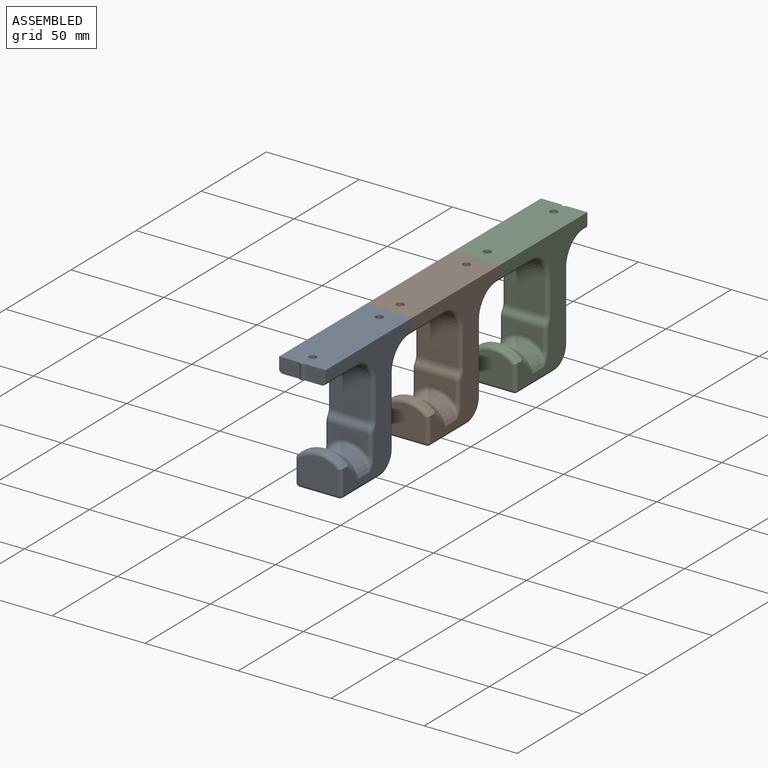
[diagram: assembled view]
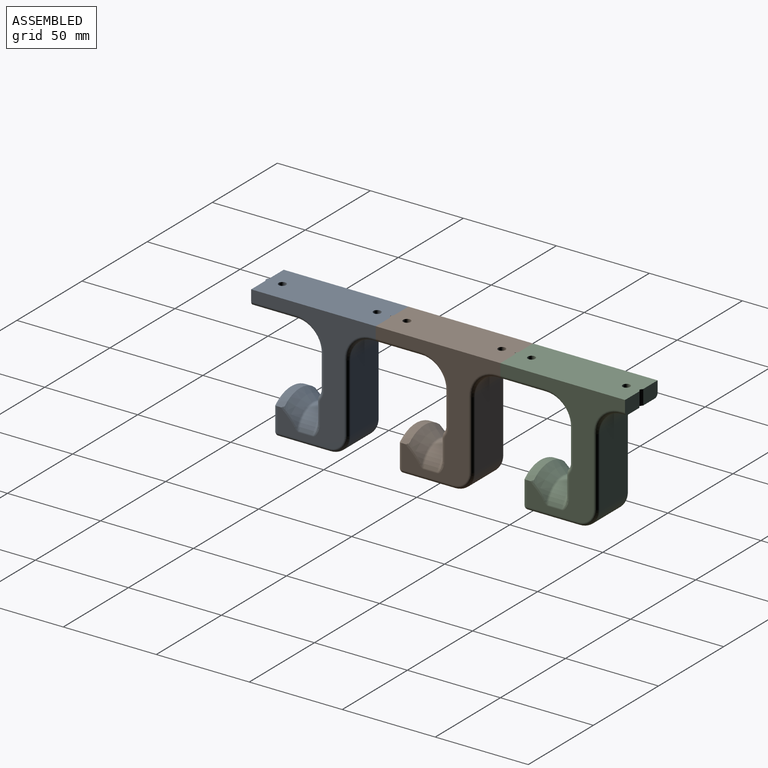
[diagram: assembled view, second angle]
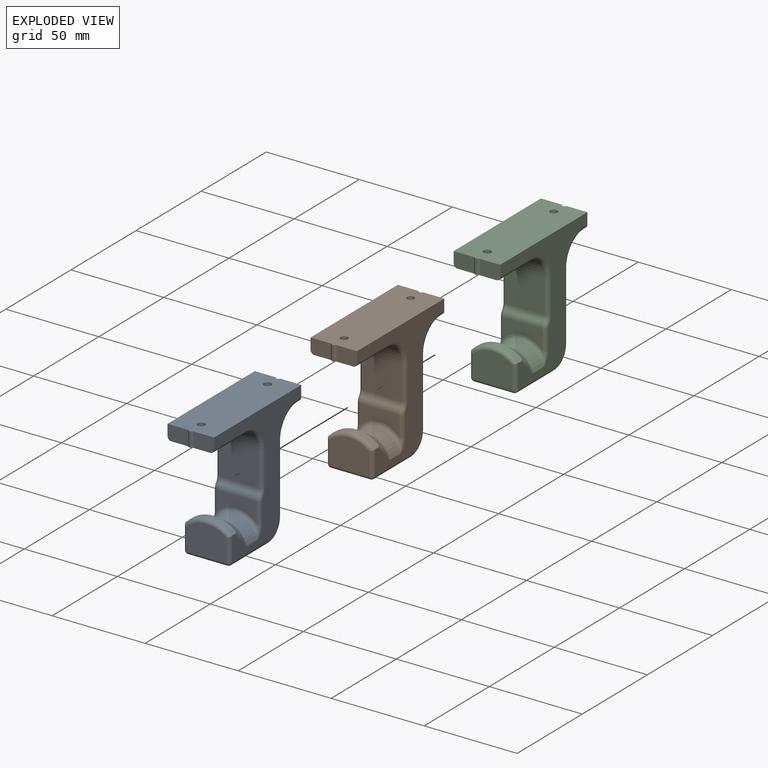
[diagram: exploded view]
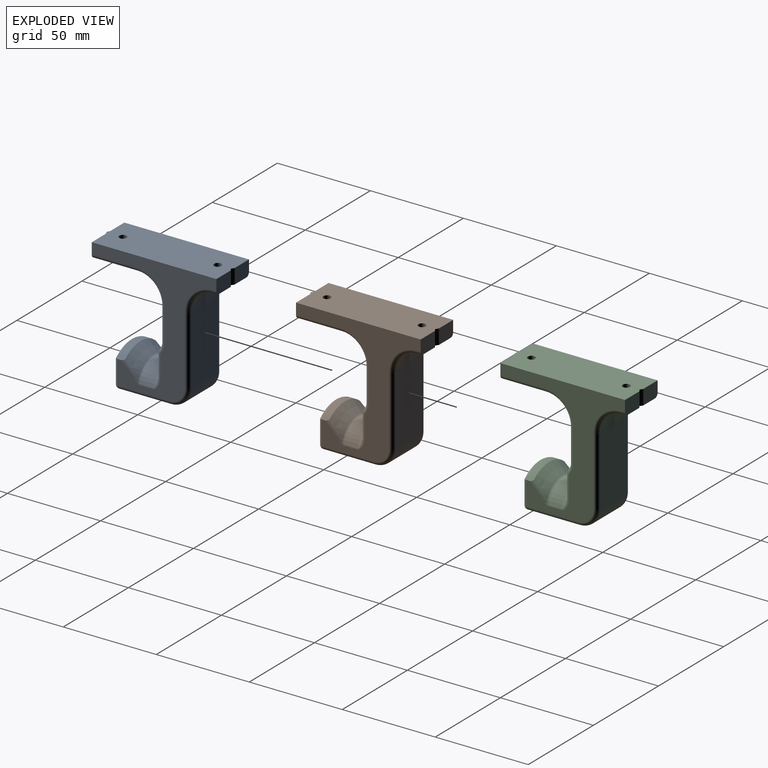
[diagram: exploded view, second angle]
ASSEMBLY  parts=3 mates=2
PART A: 71 faces, bbox 33.9x67.7x68.8 mm
  f0: plane 11x8mm, normal (0,1,0), area 87.1mm2, adj f5,f13,f15,f63,f70
  f1: plane 11x8mm, normal (0,-1,0), area 87.1mm2, adj f5,f7,f14,f47,f67
  f2: cylinder r=13mm len=21mm, axis (1,0,0), area 335.6mm2, adj f12,f13,f22,f49,f62
  f3: plane 21x16mm, normal (0,-1,0), area 310mm2, adj f52,f54,f56,f57
  f4: plane 11x8mm, normal (0,1,0), area 87.1mm2, adj f5,f13,f14,f48,f69
  f5: plane 67.7x25mm, normal (0,0,1), area 1649.7mm2, adj f0,f1,f4,f6,f14,f15,f20,f21
  f6: plane 11x8mm, normal (0,-1,0), area 87.1mm2, adj f5,f7,f15,f26,f68
  f7: plane 24.7x21mm, normal (0,0,-1), area 455.1mm2, adj f1,f6,f19,f26,f47,f65,f66,f67
  f8: plane 21x18mm, normal (0,-1,0), area 378mm2, adj f19,f24,f28,f45
  f9: plane 21x10.29mm, normal (0,-1,0), area 154.1mm2, adj f25,f36,f40,f42
  f10: plane 28x21mm, normal (0,0,-1), area 588mm2, adj f11,f53,f57,f59
  f11: cylinder r=10mm len=21mm, axis (-1,0,0), area 329.9mm2, adj f10,f12,f51,f60
  f12: plane 37x21mm, normal (0,1,0), area 777mm2, adj f2,f11,f50,f61
  f13: plane 21x2mm, normal (0,0,-1), area 40.5mm2, adj f0,f2,f4,f48,f63,f69,f70
  f14: plane 67x66mm, normal (1,0,0), area 1340.7mm2, adj f1,f4,f5,f16,f33,f37,f39,f41
  f15: plane 67x66mm, normal (-1,0,0), area 1340.7mm2, adj f0,f5,f6,f16,f26,f27,f28,f29
  f16: cylinder r=18mm len=25mm, axis (0,-1,0), area 94.7mm2, adj f14,f15,f17,f29,f33,f54
  f17: cone r=13mm half-angle=33.7deg, axis (0,-1,0), area 236.6mm2, adj f16,f29,f33,f34
  f18: cylinder r=13mm len=24.82mm, axis (0,-1,0), area 243.8mm2, adj f34,f35,f39,f40
  f19: cylinder r=13mm len=21mm, axis (-1,0,0), area 428.8mm2, adj f7,f8,f27,f46
  f20: cylinder r=2mm len=6mm, axis (0,0,-1), area 75.4mm2, adj f5,f64
  f21: cylinder r=2mm len=6mm, axis (0,0,-1), area 75.4mm2, adj f5,f65
  f22: cylinder r=5mm len=10mm, axis (0,0,-1), area 70.1mm2, adj f2,f23
  f23: plane 10x10mm, normal (0,0,-1), area 28.3mm2, adj f22,f64
  f24: cylinder r=5mm len=21mm, axis (-1,0,0), area 67.6mm2, adj f8,f25,f30,f44
  f25: cylinder r=5mm len=21mm, axis (-1,0,0), area 67.6mm2, adj f9,f24,f32,f43
  f26: cylinder r=2mm len=24mm, axis (0,1,0), area 75.4mm2, adj f6,f7,f15,f27
  f27: torus R=15mm, axis (1,0,0), area 67.7mm2, adj f15,f19,f26,f28
  f28: cylinder r=2mm len=18mm, axis (0,0,-1), area 56.5mm2, adj f8,f15,f27,f30
  f29: bspline ~10.86x10.32mm, area 19.1mm2, adj f15,f16,f17,f31
  f30: torus R=7mm, axis (1,0,0), area 11.6mm2, adj f15,f24,f28,f32
  f31: bspline ~3.64x2.94mm, area 2.6mm2, adj f15,f29,f34,f35
  f32: torus R=3mm, axis (1,0,0), area 8.6mm2, adj f15,f25,f30,f36
  f33: bspline ~10.86x10.32mm, area 19.1mm2, adj f14,f16,f17,f37
  f34: torus R=15mm, axis (0,-1,0), area 36.8mm2, adj f17,f18,f31,f37
  f35: cylinder r=2mm len=7.39mm, axis (0,-1,0), area 4.5mm2, adj f15,f18,f31,f38
  f36: cylinder r=2mm len=10.29mm, axis (0,0,-1), area 32.3mm2, adj f9,f15,f32,f38
  f37: bspline ~2.92x2.71mm, area 2.6mm2, adj f14,f33,f34,f39
  f38: bspline ~8.06x4.35mm, area 15mm2, adj f15,f35,f36,f40
  f39: cylinder r=2mm len=7.39mm, axis (0,-1,0), area 4.5mm2, adj f14,f18,f37,f41
  f40: torus R=15mm, axis (0,1,0), area 87.6mm2, adj f9,f18,f38,f41
  f41: bspline ~8.78x4.1mm, area 15mm2, adj f14,f39,f40,f42
  f42: cylinder r=2mm len=10.29mm, axis (0,0,1), area 32.3mm2, adj f9,f14,f41,f43
  f43: torus R=3mm, axis (1,0,0), area 8.6mm2, adj f14,f25,f42,f44
  f44: torus R=7mm, axis (1,0,0), area 11.6mm2, adj f14,f24,f43,f45
  f45: cylinder r=2mm len=18mm, axis (0,0,1), area 56.5mm2, adj f8,f14,f44,f46
  f46: torus R=15mm, axis (1,0,0), area 67.7mm2, adj f14,f19,f45,f47
  f47: cylinder r=2mm len=24mm, axis (0,-1,0), area 75.4mm2, adj f1,f7,f14,f46
  f48: cylinder r=2mm len=2mm, axis (0,-1,0), area 6.3mm2, adj f4,f13,f14,f49
  f49: torus R=15mm, axis (1,0,0), area 67.7mm2, adj f2,f14,f48,f50
  f50: cylinder r=2mm len=37mm, axis (0,0,-1), area 116.2mm2, adj f12,f14,f49,f51
  f51: torus R=8mm, axis (1,0,0), area 45.8mm2, adj f11,f14,f50,f53
  f52: cylinder r=2mm len=12.95mm, axis (0,0,1), area 39.3mm2, adj f3,f14,f54,f55
  f53: cylinder r=2mm len=28mm, axis (0,-1,0), area 88mm2, adj f10,f14,f51,f55
  f54: torus R=16mm, axis (0,1,0), area 80.6mm2, adj f3,f16,f52,f56
  f55: sphere r=2mm, area 6.3mm2, adj f52,f53,f57
  f56: cylinder r=2mm len=12.95mm, axis (0,0,-1), area 39.3mm2, adj f3,f15,f54,f58
  f57: cylinder r=2mm len=21mm, axis (-1,0,0), area 66mm2, adj f3,f10,f55,f58
  f58: sphere r=2mm, area 6.3mm2, adj f56,f57,f59
  f59: cylinder r=2mm len=28mm, axis (0,1,0), area 88mm2, adj f10,f15,f58,f60
  f60: torus R=8mm, axis (1,0,0), area 45.8mm2, adj f11,f15,f59,f61
  f61: cylinder r=2mm len=37mm, axis (0,0,1), area 116.2mm2, adj f12,f15,f60,f62
  f62: torus R=15mm, axis (1,0,0), area 67.7mm2, adj f2,f15,f61,f63
  f63: cylinder r=2mm len=2mm, axis (0,1,0), area 6.3mm2, adj f0,f13,f15,f62
  f64: cone r=4mm half-angle=45deg, axis (0,0,-1), area 53.3mm2, adj f20,f23
  f65: cone r=2mm half-angle=45deg, axis (0,0,-1), area 53.3mm2, adj f7,f21
  f66: plane 8x0.9mm, normal (0,-1,0), area 7.2mm2, adj f5,f7,f67,f68
  f67: plane 8x1.05mm, normal (0.55,-0.83,0), area 10.1mm2, adj f1,f5,f7,f66
  f68: plane 8x1.05mm, normal (-0.55,-0.83,0), area 10.1mm2, adj f5,f6,f7,f66
  f69: plane 8x1.5mm, normal (-0.55,0.83,0), area 14.4mm2, adj f4,f5,f13,f70
  f70: plane 8x1.5mm, normal (0.55,0.83,0), area 14.4mm2, adj f0,f5,f13,f69
PART B: same geometry as A
PART C: same geometry as A
PLACE A t=(-73.03,-61.37,-75.76)mm
PLACE B t=(-73.03,5.63,-75.76)mm
PLACE C t=(-73.03,72.63,-75.76)mm
MATE fastened C.f6 <-> B.f0  axis (0,-1,0) through (-80.03,37.63,-27.76)mm
MATE fastened B.f6 <-> A.f0  axis (0,-1,0) through (-80.03,-29.37,-27.76)mm
